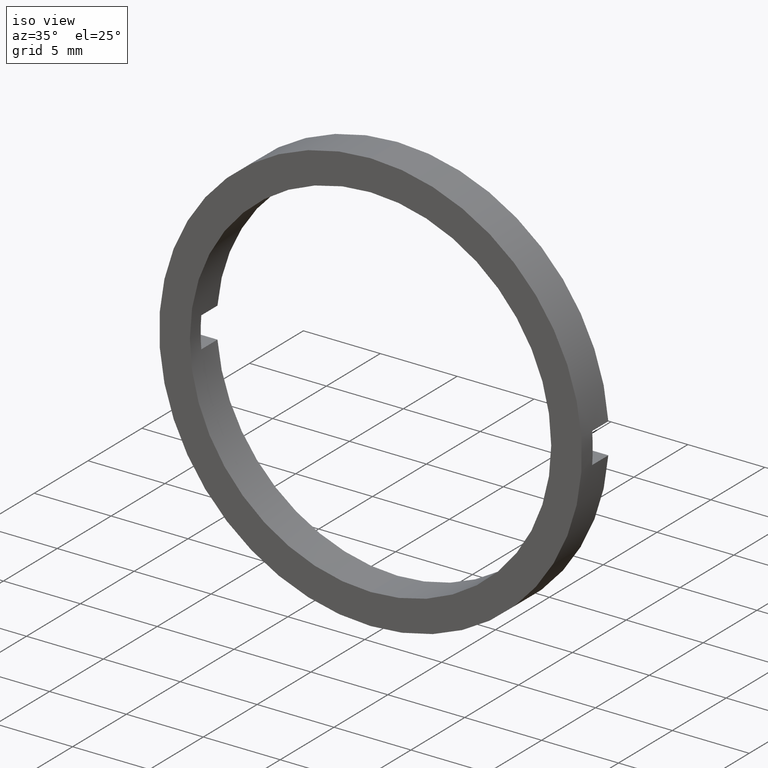
[diagram: clean part render]
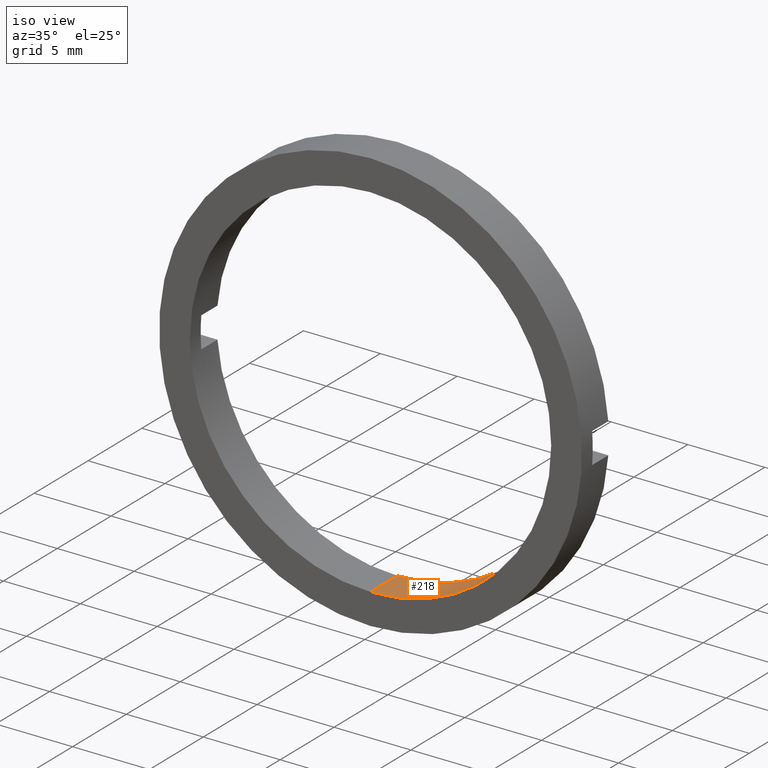
[diagram: same view with one face highlighted and labeled with its STEP entity id]
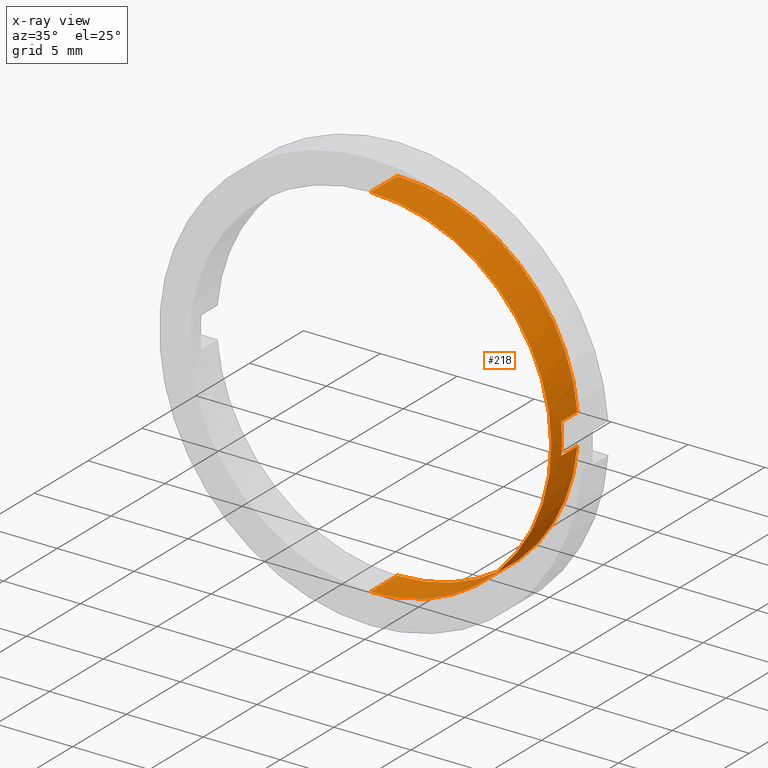
[diagram: x-ray of the same camera — body ghosted, the highlighted face saturated]
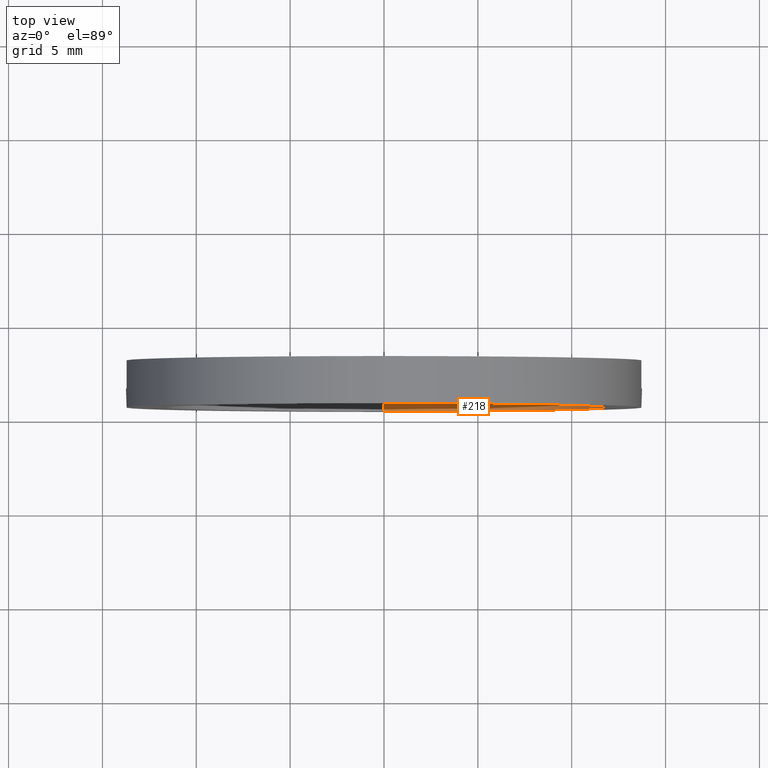
[diagram: same view with one face highlighted and labeled with its STEP entity id]
A machine part, iso view. The second image highlights one B-rep face of the part: STEP entity #218.
The next image is the same camera in x-ray: the body ghosted, the highlighted face saturated — about 0% of this face is hidden behind the body in this view.
A second angle (top view) of the same face is appended — the face is thin or edge-on in the first view.
In plain terms, the highlighted cylindrical surface (partial cylindrical patch) has radius 11.75 mm, axis along (-0, 1, -0).
Its self-contained STEP definition (entity closure, byte-faithful):
#3 = DIRECTION ( 'NONE',  ( 0.0000000000000000000, 0.0000000000000000000, 1.000000000000000000 ) ) ;
#5 = CIRCLE ( 'NONE', #358, 11.75000000000000700 ) ;
#20 = EDGE_CURVE ( 'NONE', #101, #59, #65, .T. ) ;
#40 = DIRECTION ( 'NONE',  ( -0.0000000000000000000, 1.000000000000000000, -0.0000000000000000000 ) ) ;
#42 = DIRECTION ( 'NONE',  ( -0.0000000000000000000, -1.000000000000000000, -0.0000000000000000000 ) ) ;
#59 = VERTEX_POINT ( 'NONE', #61 ) ;
#60 = CIRCLE ( 'NONE', #500, 11.75000000000000700 ) ;
#61 = CARTESIAN_POINT ( 'NONE',  ( 11.70736947396810200, -3.464249787179428400, 0.9999999999999995600 ) ) ;
#64 = VERTEX_POINT ( 'NONE', #456 ) ;
#65 = LINE ( 'NONE', #451, #94 ) ;
#74 = LINE ( 'NONE', #378, #82 ) ;
#75 = EDGE_CURVE ( 'NONE', #442, #325, #60, .T. ) ;
#82 = VECTOR ( 'NONE', #269, 1000.000000000000000 ) ;
#94 = VECTOR ( 'NONE', #223, 1000.000000000000000 ) ;
#101 = VERTEX_POINT ( 'NONE', #138 ) ;
#103 = ORIENTED_EDGE ( 'NONE', *, *, #176, .F. ) ;
#105 = DIRECTION ( 'NONE',  ( 0.0000000000000000000, 0.0000000000000000000, 1.000000000000000000 ) ) ;
#108 = DIRECTION ( 'NONE',  ( -0.0000000000000000000, 1.000000000000000000, -0.0000000000000000000 ) ) ;
#113 = CARTESIAN_POINT ( 'NONE',  ( 1.438959988998140900E-015, -1.964249787179434000, -11.75000000000000700 ) ) ;
#121 = ORIENTED_EDGE ( 'NONE', *, *, #346, .F. ) ;
#122 = VECTOR ( 'NONE', #342, 1000.000000000000000 ) ;
#130 = EDGE_CURVE ( 'NONE', #201, #442, #386, .T. ) ;
#138 = CARTESIAN_POINT ( 'NONE',  ( 11.70736947396810200, -1.964249787179434000, 0.9999999999999995600 ) ) ;
#142 = VECTOR ( 'NONE', #197, 1000.000000000000000 ) ;
#153 = EDGE_CURVE ( 'NONE', #64, #101, #166, .T. ) ;
#154 = EDGE_CURVE ( 'NONE', #354, #325, #74, .T. ) ;
#166 = CIRCLE ( 'NONE', #289, 11.75000000000000700 ) ;
#176 = EDGE_CURVE ( 'NONE', #284, #354, #186, .T. ) ;
#184 = DIRECTION ( 'NONE',  ( -0.0000000000000000000, 1.000000000000000000, -0.0000000000000000000 ) ) ;
#186 = CIRCLE ( 'NONE', #328, 11.75000000000000700 ) ;
#187 = ORIENTED_EDGE ( 'NONE', *, *, #20, .T. ) ;
#189 = CARTESIAN_POINT ( 'NONE',  ( 11.70736947396810400, 56.26084262701361600, -1.000000000000000000 ) ) ;
#195 = CARTESIAN_POINT ( 'NONE',  ( 11.70736947396810200, -3.464249787179428400, -0.9999999999999995600 ) ) ;
#197 = DIRECTION ( 'NONE',  ( -0.0000000000000000000, 1.000000000000000000, -0.0000000000000000000 ) ) ;
#201 = VERTEX_POINT ( 'NONE', #195 ) ;
#218 = ADVANCED_FACE ( 'NONE', ( #243 ), #465, .F. ) ;
#223 = DIRECTION ( 'NONE',  ( 0.0000000000000000000, -1.000000000000000000, 0.0000000000000000000 ) ) ;
#239 = CARTESIAN_POINT ( 'NONE',  ( 0.0000000000000000000, 56.26084262701361600, 0.0000000000000000000 ) ) ;
#243 = FACE_OUTER_BOUND ( 'NONE', #341, .T. ) ;
#245 = EDGE_CURVE ( 'NONE', #284, #64, #454, .T. ) ;
#269 = DIRECTION ( 'NONE',  ( -0.0000000000000000000, 1.000000000000000000, -0.0000000000000000000 ) ) ;
#278 = CARTESIAN_POINT ( 'NONE',  ( 1.438959988998140900E-015, -4.464249787179428900, -11.75000000000000700 ) ) ;
#280 = CARTESIAN_POINT ( 'NONE',  ( 0.0000000000000000000, 56.26084262701361600, 11.75000000000000700 ) ) ;
#281 = CARTESIAN_POINT ( 'NONE',  ( 0.0000000000000000000, -4.464249787179428900, 0.0000000000000000000 ) ) ;
#284 = VERTEX_POINT ( 'NONE', #393 ) ;
#289 = AXIS2_PLACEMENT_3D ( 'NONE', #420, #184, #105 ) ;
#302 = ORIENTED_EDGE ( 'NONE', *, *, #153, .T. ) ;
#307 = DIRECTION ( 'NONE',  ( -0.0000000000000000000, 1.000000000000000000, -0.0000000000000000000 ) ) ;
#315 = AXIS2_PLACEMENT_3D ( 'NONE', #239, #108, #3 ) ;
#317 = DIRECTION ( 'NONE',  ( 0.0000000000000000000, 0.0000000000000000000, 1.000000000000000000 ) ) ;
#325 = VERTEX_POINT ( 'NONE', #113 ) ;
#327 = CARTESIAN_POINT ( 'NONE',  ( 0.0000000000000000000, -3.464249787179428400, 0.0000000000000000000 ) ) ;
#328 = AXIS2_PLACEMENT_3D ( 'NONE', #281, #40, #317 ) ;
#341 = EDGE_LOOP ( 'NONE', ( #496, #103, #499, #302, #187, #121, #379, #498 ) ) ;
#342 = DIRECTION ( 'NONE',  ( -0.0000000000000000000, 1.000000000000000000, -0.0000000000000000000 ) ) ;
#346 = EDGE_CURVE ( 'NONE', #201, #59, #5, .T. ) ;
#347 = CARTESIAN_POINT ( 'NONE',  ( 0.0000000000000000000, -1.964249787179434000, 0.0000000000000000000 ) ) ;
#354 = VERTEX_POINT ( 'NONE', #278 ) ;
#357 = CARTESIAN_POINT ( 'NONE',  ( 11.70736947396810200, -1.964249787179434000, -0.9999999999999995600 ) ) ;
#358 = AXIS2_PLACEMENT_3D ( 'NONE', #327, #42, #360 ) ;
#360 = DIRECTION ( 'NONE',  ( 6.217248937900875800E-015, 0.0000000000000000000, 1.000000000000000000 ) ) ;
#378 = CARTESIAN_POINT ( 'NONE',  ( 1.438959988998140900E-015, 56.26084262701361600, -11.75000000000000700 ) ) ;
#379 = ORIENTED_EDGE ( 'NONE', *, *, #130, .T. ) ;
#386 = LINE ( 'NONE', #189, #122 ) ;
#387 = DIRECTION ( 'NONE',  ( 0.0000000000000000000, 0.0000000000000000000, 1.000000000000000000 ) ) ;
#393 = CARTESIAN_POINT ( 'NONE',  ( 0.0000000000000000000, -4.464249787179428900, 11.75000000000000700 ) ) ;
#420 = CARTESIAN_POINT ( 'NONE',  ( 0.0000000000000000000, -1.964249787179434000, 0.0000000000000000000 ) ) ;
#442 = VERTEX_POINT ( 'NONE', #357 ) ;
#451 = CARTESIAN_POINT ( 'NONE',  ( 11.70736947396810400, 56.26084262701361600, 1.000000000000000000 ) ) ;
#454 = LINE ( 'NONE', #280, #142 ) ;
#456 = CARTESIAN_POINT ( 'NONE',  ( 0.0000000000000000000, -1.964249787179434000, 11.75000000000000700 ) ) ;
#465 = CYLINDRICAL_SURFACE ( 'NONE', #315, 11.75000000000000700 ) ;
#496 = ORIENTED_EDGE ( 'NONE', *, *, #154, .F. ) ;
#498 = ORIENTED_EDGE ( 'NONE', *, *, #75, .T. ) ;
#499 = ORIENTED_EDGE ( 'NONE', *, *, #245, .T. ) ;
#500 = AXIS2_PLACEMENT_3D ( 'NONE', #347, #307, #387 ) ;